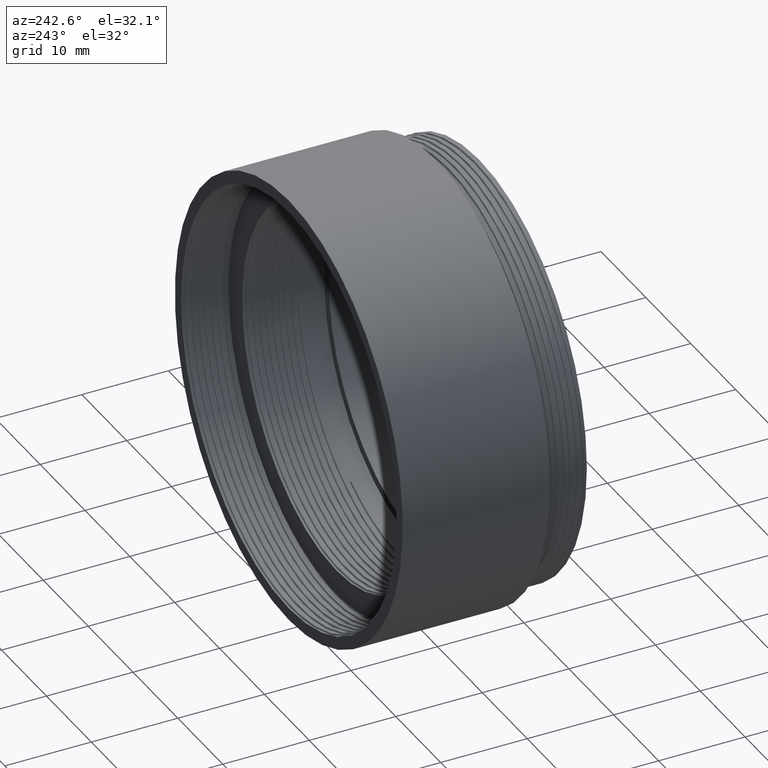
[diagram: clean part render]
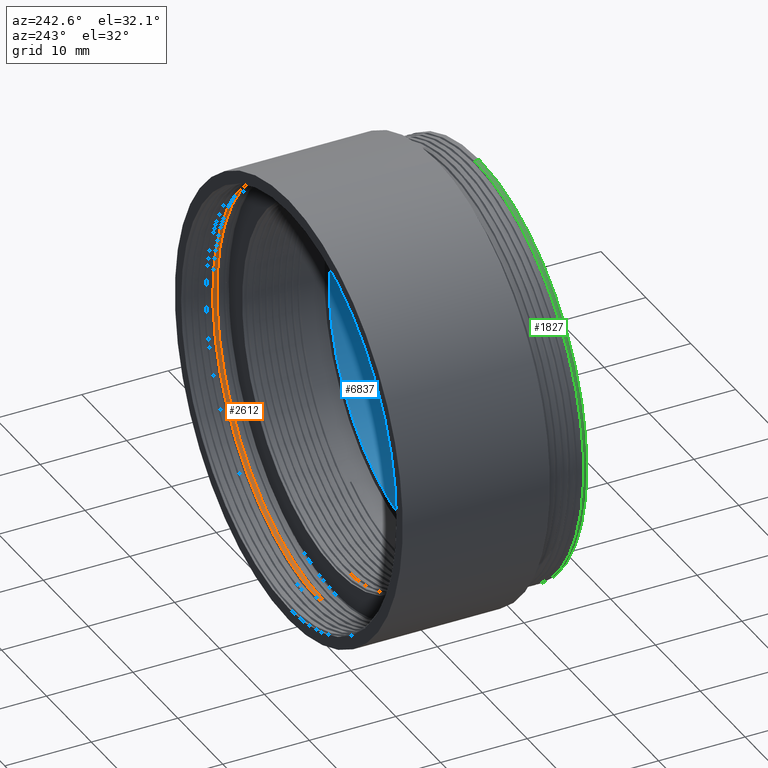
[diagram: same view with three faces highlighted in distinct colors, each labeled with its STEP entity id]
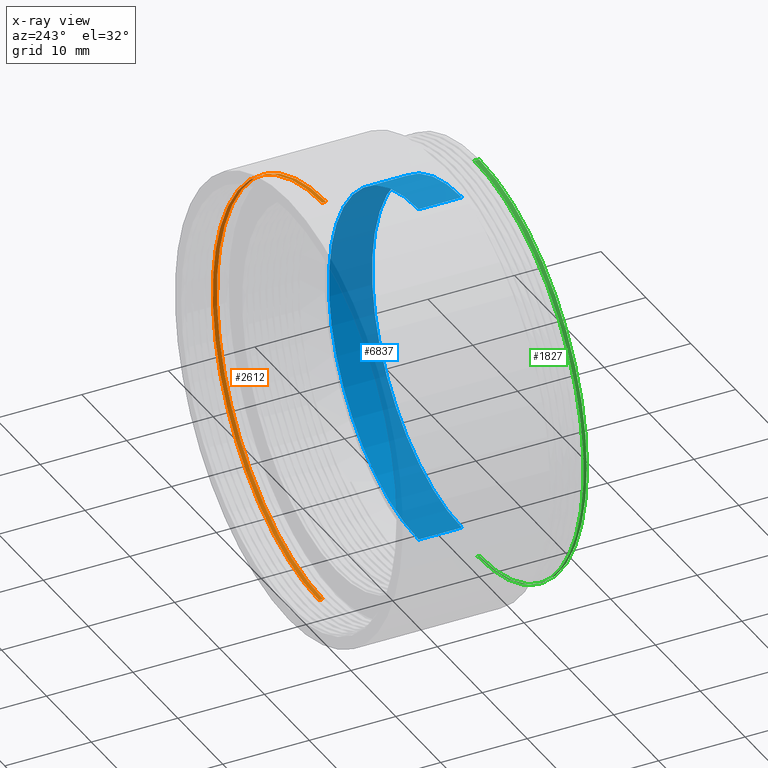
[diagram: x-ray of the same camera — body ghosted, the three highlighted faces saturated]
A machine part, auxiliary view with three faces highlighted in distinct colors.
The next image is the same camera in x-ray (body ghosted, the three faces saturated) — at least one of them is partly hidden behind the body in this view.
Their STEP definitions:

[orange] entity #2612 — the highlighted cylindrical surface (partial cylindrical patch) has radius 24 mm, axis along (-0, -1, -0).
#270 =( BOUNDED_CURVE ( )  B_SPLINE_CURVE ( 2, ( #6337, #4705, #1370, #2933, #4668, #3035, #4162, #1335, #1841 ),
 .UNSPECIFIED., .F., .F. ) 
 B_SPLINE_CURVE_WITH_KNOTS ( ( 3, 2, 2, 2, 3 ),
 ( 0.5312499999999998890, 0.5468749999999998890, 0.5624999999999998890, 0.5781249999999998890, 0.5937499999999998890 ),
 .UNSPECIFIED. ) 
 CURVE ( )  GEOMETRIC_REPRESENTATION_ITEM ( )  RATIONAL_B_SPLINE_CURVE ( ( 1.000000000000000444, 0.9238795325112861834, 1.000000000000000000, 0.9238795325112867385, 1.000000000000000000, 0.9238795325112867385, 1.000000000000000000, 0.9238795325112872936, 0.9999999999999994449 ) ) 
 REPRESENTATION_ITEM ( '' )  );
#395 =( BOUNDED_CURVE ( )  B_SPLINE_CURVE ( 2, ( #3252, #1516, #4917, #6077, #3763, #7140, #3325, #4274, #6520 ),
 .UNSPECIFIED., .F., .F. ) 
 B_SPLINE_CURVE_WITH_KNOTS ( ( 3, 2, 2, 2, 3 ),
 ( 0.6562500000000000000, 0.6718750000000000000, 0.6875000000000000000, 0.7031250000000000000, 0.7187500000000000000 ),
 .UNSPECIFIED. ) 
 CURVE ( )  GEOMETRIC_REPRESENTATION_ITEM ( )  RATIONAL_B_SPLINE_CURVE ( ( 1.000000000000000000, 0.9238795325112867385, 1.000000000000000000, 0.9238795325112867385, 1.000000000000000000, 0.9238795325112867385, 1.000000000000000000, 0.9238795325112867385, 1.000000000000000000 ) ) 
 REPRESENTATION_ITEM ( '' )  );
#962 = CARTESIAN_POINT ( 'NONE',  ( 4.408728476930470856E-15, 18.15968750086715033, 24.00000000000000000 ) ) ;
#1017 = ORIENTED_EDGE ( 'NONE', *, *, #1921, .F. ) ;
#1268 = LINE ( 'NONE', #6164, #6849 ) ;
#1335 = CARTESIAN_POINT ( 'NONE',  ( 9.941125496954350993, 18.20656250086715389, 23.99999999999993960 ) ) ;
#1370 = CARTESIAN_POINT ( 'NONE',  ( 16.97056274847713908, 18.44093750086715033, -16.97056274847714263 ) ) ;
#1376 = LINE ( 'NONE', #5290, #4651 ) ;
#1489 = DIRECTION ( 'NONE',  ( 0.000000000000000000, 0.000000000000000000, -1.000000000000000000 ) ) ;
#1516 = CARTESIAN_POINT ( 'NONE',  ( 9.941125496954285268, 18.01562500000000000, -23.99999999999999645 ) ) ;
#1526 = ORIENTED_EDGE ( 'NONE', *, *, #5437, .F. ) ;
#1662 = CARTESIAN_POINT ( 'NONE',  ( 0.000000000000000000, 0.000000000000000000, 0.000000000000000000 ) ) ;
#1841 = CARTESIAN_POINT ( 'NONE',  ( 4.408728476930470856E-15, 18.15968750086715033, 24.00000000000000000 ) ) ;
#1921 = EDGE_CURVE ( 'NONE', #4857, #4344, #270, .T. ) ;
#2036 = FACE_OUTER_BOUND ( 'NONE', #4498, .T. ) ;
#2237 = VERTEX_POINT ( 'NONE', #2339 ) ;
#2339 = CARTESIAN_POINT ( 'NONE',  ( -1.469576158976823947E-15, 18.06250000000000000, -24.00000000000000000 ) ) ;
#2447 = CARTESIAN_POINT ( 'NONE',  ( -1.469576158976823947E-15, 18.53468750086715033, -24.00000000000000000 ) ) ;
#2612 = ADVANCED_FACE ( 'NONE', ( #2036 ), #4791, .F. ) ;
#2933 = CARTESIAN_POINT ( 'NONE',  ( 23.99999999999999645, 18.39406250086715033, -9.941125496954285268 ) ) ;
#3035 = CARTESIAN_POINT ( 'NONE',  ( 24.00000000000001421, 18.30031250086715033, 9.941125496954278162 ) ) ;
#3084 = DIRECTION ( 'NONE',  ( -0.000000000000000000, -1.000000000000000000, -0.000000000000000000 ) ) ;
#3252 = CARTESIAN_POINT ( 'NONE',  ( -1.469576158976823947E-15, 18.06250000000000000, -24.00000000000000000 ) ) ;
#3325 = CARTESIAN_POINT ( 'NONE',  ( 16.97056274847714619, 17.78125000000000000, 16.97056274847713908 ) ) ;
#3589 = DIRECTION ( 'NONE',  ( -0.000000000000000000, -1.000000000000000000, -0.000000000000000000 ) ) ;
#3630 = ORIENTED_EDGE ( 'NONE', *, *, #7050, .T. ) ;
#3763 = CARTESIAN_POINT ( 'NONE',  ( 24.00000000000000000, 17.87500000000000000, -2.939152317953647894E-15 ) ) ;
#3915 = DIRECTION ( 'NONE',  ( -0.000000000000000000, -1.000000000000000000, -0.000000000000000000 ) ) ;
#4162 = CARTESIAN_POINT ( 'NONE',  ( 16.97056274847714619, 18.25343750086715033, 16.97056274847713908 ) ) ;
#4274 = CARTESIAN_POINT ( 'NONE',  ( 9.941125496954295926, 17.73437499999999645, 23.99999999999999289 ) ) ;
#4344 = VERTEX_POINT ( 'NONE', #962 ) ;
#4498 = EDGE_LOOP ( 'NONE', ( #1526, #1017, #3630, #5383 ) ) ;
#4651 = VECTOR ( 'NONE', #3589, 1000.000000000000000 ) ;
#4668 = CARTESIAN_POINT ( 'NONE',  ( 24.00000000000000000, 18.34718750086715033, -2.939152317953647894E-15 ) ) ;
#4705 = CARTESIAN_POINT ( 'NONE',  ( 9.941125496954230201, 18.48781250086715033, -24.00000000000006040 ) ) ;
#4791 = CYLINDRICAL_SURFACE ( 'NONE', #5671, 24.00000000000000000 ) ;
#4857 = VERTEX_POINT ( 'NONE', #2447 ) ;
#4917 = CARTESIAN_POINT ( 'NONE',  ( 16.97056274847713908, 17.96875000000000000, -16.97056274847714263 ) ) ;
#5290 = CARTESIAN_POINT ( 'NONE',  ( 0.000000000000000000, 0.000000000000000000, -24.00000000000000000 ) ) ;
#5383 = ORIENTED_EDGE ( 'NONE', *, *, #6058, .T. ) ;
#5437 = EDGE_CURVE ( 'NONE', #4344, #6753, #1268, .T. ) ;
#5671 = AXIS2_PLACEMENT_3D ( 'NONE', #1662, #3084, #1489 ) ;
#6017 = CARTESIAN_POINT ( 'NONE',  ( 4.408728476930470856E-15, 17.68750000000000000, 24.00000000000000000 ) ) ;
#6058 = EDGE_CURVE ( 'NONE', #2237, #6753, #395, .T. ) ;
#6077 = CARTESIAN_POINT ( 'NONE',  ( 23.99999999999999645, 17.92187499999999645, -9.941125496954285268 ) ) ;
#6164 = CARTESIAN_POINT ( 'NONE',  ( 2.939152317953647894E-15, 0.000000000000000000, 24.00000000000000000 ) ) ;
#6337 = CARTESIAN_POINT ( 'NONE',  ( -1.469576158976823947E-15, 18.53468750086715033, -24.00000000000000000 ) ) ;
#6520 = CARTESIAN_POINT ( 'NONE',  ( 4.408728476930470856E-15, 17.68750000000000000, 24.00000000000000000 ) ) ;
#6753 = VERTEX_POINT ( 'NONE', #6017 ) ;
#6849 = VECTOR ( 'NONE', #3915, 1000.000000000000000 ) ;
#7050 = EDGE_CURVE ( 'NONE', #4857, #2237, #1376, .T. ) ;
#7140 = CARTESIAN_POINT ( 'NONE',  ( 24.00000000000001421, 17.82812500000000000, 9.941125496954278162 ) ) ;

[blue] entity #6837 — the highlighted cylindrical surface (partial cylindrical patch) has radius 20 mm, axis along (-0, -1, -0).
#11 = CARTESIAN_POINT ( 'NONE',  ( 0.000000000000000000, 2.010000000000000231, 0.000000000000000000 ) ) ;
#138 = DIRECTION ( 'NONE',  ( 0.000000000000000000, 0.000000000000000000, -1.000000000000000000 ) ) ;
#214 = EDGE_LOOP ( 'NONE', ( #5426, #4806, #5587, #1332 ) ) ;
#348 = CIRCLE ( 'NONE', #4411, 20.00000000000000000 ) ;
#380 = EDGE_CURVE ( 'NONE', #6822, #2058, #1979, .T. ) ;
#871 = CARTESIAN_POINT ( 'NONE',  ( 2.449293598294706513E-15, 2.010000000000000231, 20.00000000000000000 ) ) ;
#1295 = AXIS2_PLACEMENT_3D ( 'NONE', #5649, #5758, #138 ) ;
#1332 = ORIENTED_EDGE ( 'NONE', *, *, #6506, .F. ) ;
#1886 = LINE ( 'NONE', #6309, #5686 ) ;
#1979 = CIRCLE ( 'NONE', #3952, 20.00000000000000000 ) ;
#2058 = VERTEX_POINT ( 'NONE', #6295 ) ;
#2187 = CARTESIAN_POINT ( 'NONE',  ( 0.000000000000000000, 2.010000000000000231, -20.00000000000000000 ) ) ;
#2236 = DIRECTION ( 'NONE',  ( -0.000000000000000000, -1.000000000000000000, -0.000000000000000000 ) ) ;
#2399 = DIRECTION ( 'NONE',  ( 0.000000000000000000, 0.000000000000000000, 1.000000000000000000 ) ) ;
#2424 = CYLINDRICAL_SURFACE ( 'NONE', #1295, 20.00000000000000000 ) ;
#2708 = VERTEX_POINT ( 'NONE', #871 ) ;
#2779 = CARTESIAN_POINT ( 'NONE',  ( 2.449293598294706513E-15, 0.000000000000000000, 20.00000000000000000 ) ) ;
#3483 = DIRECTION ( 'NONE',  ( -0.000000000000000000, -1.000000000000000000, -0.000000000000000000 ) ) ;
#3541 = DIRECTION ( 'NONE',  ( 0.000000000000000000, 0.000000000000000000, -1.000000000000000000 ) ) ;
#3714 = VECTOR ( 'NONE', #2236, 1000.000000000000000 ) ;
#3952 = AXIS2_PLACEMENT_3D ( 'NONE', #6875, #6297, #3541 ) ;
#3961 = EDGE_CURVE ( 'NONE', #2058, #2708, #5531, .T. ) ;
#3995 = FACE_OUTER_BOUND ( 'NONE', #214, .T. ) ;
#4411 = AXIS2_PLACEMENT_3D ( 'NONE', #11, #6823, #2399 ) ;
#4521 = VERTEX_POINT ( 'NONE', #2187 ) ;
#4806 = ORIENTED_EDGE ( 'NONE', *, *, #380, .F. ) ;
#5426 = ORIENTED_EDGE ( 'NONE', *, *, #3961, .F. ) ;
#5531 = LINE ( 'NONE', #2779, #3714 ) ;
#5587 = ORIENTED_EDGE ( 'NONE', *, *, #6970, .T. ) ;
#5649 = CARTESIAN_POINT ( 'NONE',  ( 0.000000000000000000, 0.000000000000000000, 0.000000000000000000 ) ) ;
#5686 = VECTOR ( 'NONE', #3483, 1000.000000000000000 ) ;
#5687 = CARTESIAN_POINT ( 'NONE',  ( 0.000000000000000000, 7.000000000000000000, -20.00000000000000000 ) ) ;
#5758 = DIRECTION ( 'NONE',  ( -0.000000000000000000, -1.000000000000000000, -0.000000000000000000 ) ) ;
#6295 = CARTESIAN_POINT ( 'NONE',  ( 2.449293598294706513E-15, 7.000000000000000000, 20.00000000000000000 ) ) ;
#6297 = DIRECTION ( 'NONE',  ( -0.000000000000000000, -1.000000000000000000, -0.000000000000000000 ) ) ;
#6309 = CARTESIAN_POINT ( 'NONE',  ( 0.000000000000000000, 0.000000000000000000, -20.00000000000000000 ) ) ;
#6506 = EDGE_CURVE ( 'NONE', #2708, #4521, #348, .T. ) ;
#6822 = VERTEX_POINT ( 'NONE', #5687 ) ;
#6823 = DIRECTION ( 'NONE',  ( 0.000000000000000000, 1.000000000000000000, 0.000000000000000000 ) ) ;
#6837 = ADVANCED_FACE ( 'NONE', ( #3995 ), #2424, .F. ) ;
#6875 = CARTESIAN_POINT ( 'NONE',  ( 0.000000000000000000, 7.000000000000000000, 0.000000000000000000 ) ) ;
#6970 = EDGE_CURVE ( 'NONE', #6822, #4521, #1886, .T. ) ;

[green] entity #1827 — the highlighted cylindrical surface (partial cylindrical patch) has radius 24 mm, axis along (-0, -1, -0).
#209 = VERTEX_POINT ( 'NONE', #6260 ) ;
#303 = VERTEX_POINT ( 'NONE', #1402 ) ;
#398 = EDGE_CURVE ( 'NONE', #638, #3917, #5744, .T. ) ;
#638 = VERTEX_POINT ( 'NONE', #4642 ) ;
#642 = FACE_OUTER_BOUND ( 'NONE', #3762, .T. ) ;
#781 = CARTESIAN_POINT ( 'NONE',  ( 2.939152317953647894E-15, 0.000000000000000000, 24.00000000000000000 ) ) ;
#1178 = AXIS2_PLACEMENT_3D ( 'NONE', #7038, #4281, #6488 ) ;
#1386 = ORIENTED_EDGE ( 'NONE', *, *, #2756, .T. ) ;
#1402 = CARTESIAN_POINT ( 'NONE',  ( 1.469576158976823947E-15, 0.1875000000000003886, -24.00000000000000000 ) ) ;
#1774 = CARTESIAN_POINT ( 'NONE',  ( 1.469576158976823947E-15, 0.1875000000000003886, -24.00000000000000000 ) ) ;
#1827 = ADVANCED_FACE ( 'NONE', ( #642 ), #2747, .T. ) ;
#1846 = CARTESIAN_POINT ( 'NONE',  ( -16.97056274847714619, 0.4687500000000003886, 16.97056274847713908 ) ) ;
#1865 = VECTOR ( 'NONE', #1910, 1000.000000000000000 ) ;
#1910 = DIRECTION ( 'NONE',  ( -0.000000000000000000, -1.000000000000000000, -0.000000000000000000 ) ) ;
#2026 = DIRECTION ( 'NONE',  ( -0.000000000000000000, -1.000000000000000000, -0.000000000000000000 ) ) ;
#2747 = CYLINDRICAL_SURFACE ( 'NONE', #6715, 24.00000000000000000 ) ;
#2756 = EDGE_CURVE ( 'NONE', #303, #209, #4675, .T. ) ;
#2780 = ORIENTED_EDGE ( 'NONE', *, *, #5279, .F. ) ;
#3004 = CARTESIAN_POINT ( 'NONE',  ( 0.000000000000000000, 0.000000000000000000, -24.00000000000000000 ) ) ;
#3448 = CARTESIAN_POINT ( 'NONE',  ( -4.408728476930470856E-15, 0.5625000000000004441, 24.00000000000000000 ) ) ;
#3518 = CARTESIAN_POINT ( 'NONE',  ( -9.941125496954288820, 0.5156250000000004441, 24.00000000000000000 ) ) ;
#3762 = EDGE_LOOP ( 'NONE', ( #5204, #7009, #1386, #2780 ) ) ;
#3917 = VERTEX_POINT ( 'NONE', #4449 ) ;
#4173 = VECTOR ( 'NONE', #2026, 1000.000000000000000 ) ;
#4281 = DIRECTION ( 'NONE',  ( -0.000000000000000000, -1.000000000000000000, -0.000000000000000000 ) ) ;
#4301 = CIRCLE ( 'NONE', #1178, 24.00000000000000000 ) ;
#4416 = CARTESIAN_POINT ( 'NONE',  ( 0.000000000000000000, 0.000000000000000000, 0.000000000000000000 ) ) ;
#4449 = CARTESIAN_POINT ( 'NONE',  ( 2.939152317953647894E-15, 3.673940397442059375E-16, 24.00000000000000000 ) ) ;
#4597 = CARTESIAN_POINT ( 'NONE',  ( -24.00000000000000000, 0.3750000000000003886, -2.939152317953647894E-15 ) ) ;
#4642 = CARTESIAN_POINT ( 'NONE',  ( -4.408728476930470856E-15, 0.5625000000000004441, 24.00000000000000000 ) ) ;
#4675 = LINE ( 'NONE', #3004, #4173 ) ;
#5144 = CARTESIAN_POINT ( 'NONE',  ( -23.99999999999999645, 0.3281250000000003886, -9.941125496954285268 ) ) ;
#5204 = ORIENTED_EDGE ( 'NONE', *, *, #398, .F. ) ;
#5279 = EDGE_CURVE ( 'NONE', #3917, #209, #4301, .T. ) ;
#5362 = EDGE_CURVE ( 'NONE', #303, #638, #6145, .T. ) ;
#5536 = DIRECTION ( 'NONE',  ( -0.000000000000000000, -1.000000000000000000, -0.000000000000000000 ) ) ;
#5614 = CARTESIAN_POINT ( 'NONE',  ( -16.97056274847713908, 0.2812500000000003886, -16.97056274847714263 ) ) ;
#5744 = LINE ( 'NONE', #781, #1865 ) ;
#6145 =( BOUNDED_CURVE ( )  B_SPLINE_CURVE ( 2, ( #1774, #6235, #5614, #5144, #4597, #6814, #1846, #3518, #3448 ),
 .UNSPECIFIED., .F., .T. ) 
 B_SPLINE_CURVE_WITH_KNOTS ( ( 3, 2, 2, 2, 3 ),
 ( 0.03571428571428571230, 0.05357142857142857539, 0.07142857142857142461, 0.08928571428571430157, 0.1071428571428571508 ),
 .UNSPECIFIED. ) 
 CURVE ( )  GEOMETRIC_REPRESENTATION_ITEM ( )  RATIONAL_B_SPLINE_CURVE ( ( 1.000000000000000000, 0.9238795325112867385, 1.000000000000000000, 0.9238795325112867385, 1.000000000000000000, 0.9238795325112867385, 1.000000000000000000, 0.9238795325112866275, 1.000000000000000000 ) ) 
 REPRESENTATION_ITEM ( '' )  );
#6235 = CARTESIAN_POINT ( 'NONE',  ( -9.941125496954285268, 0.2343750000000003608, -23.99999999999999645 ) ) ;
#6260 = CARTESIAN_POINT ( 'NONE',  ( 0.000000000000000000, 3.673940397442059375E-16, -24.00000000000000000 ) ) ;
#6488 = DIRECTION ( 'NONE',  ( 0.000000000000000000, 0.000000000000000000, -1.000000000000000000 ) ) ;
#6667 = DIRECTION ( 'NONE',  ( 0.000000000000000000, 0.000000000000000000, -1.000000000000000000 ) ) ;
#6715 = AXIS2_PLACEMENT_3D ( 'NONE', #4416, #5536, #6667 ) ;
#6814 = CARTESIAN_POINT ( 'NONE',  ( -24.00000000000001421, 0.4218750000000004441, 9.941125496954278162 ) ) ;
#7009 = ORIENTED_EDGE ( 'NONE', *, *, #5362, .F. ) ;
#7038 = CARTESIAN_POINT ( 'NONE',  ( 0.000000000000000000, 3.673940397442059375E-16, 0.000000000000000000 ) ) ;